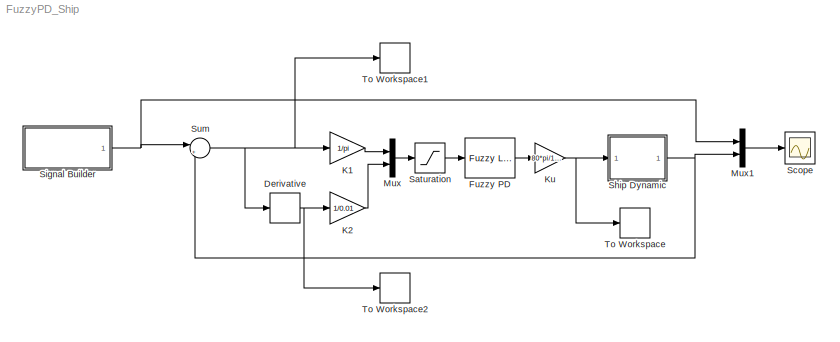
MODEL FuzzyPD_Ship
KIND model
CONFIG PreLoadFcn = FuzzyPD=readfis('FuzzyPD_Ship.fis');
CONFIG StartFcn = FuzzyPD=readfis('FuzzyPD_Ship.fis');
BLOCK [Derivative] Derivative
  SID = 1
BLOCK [Reference] Fuzzy PD  REF=fuzblock/Fuzzy Logic \nController  (lib defined in mdl_858b3b3e7478)
  Ports = [1, 1]
  SID = 2
  SourceBlock = fuzblock/Fuzzy Logic \nController
  SourceType = FIS
  fis = FuzzyPD
BLOCK [Gain] K1
  Gain = 1/pi
  SID = 3
BLOCK [Gain] K2
  Gain = 1/0.01
  SID = 4
BLOCK [Gain] Ku
  Gain = 80*pi/180
  SID = 5
BLOCK [Mux] Mux
  DisplayOption = bar
  Inputs = 2
  Ports = [2, 1]
  SID = 6
BLOCK [Mux] Mux1
  DisplayOption = bar
  Inputs = 2
  Ports = [2, 1]
  SID = 7
BLOCK [Saturate] Saturation
  InputPortMap = u0
  LowerLimit = -1
  Ports = [1, 1]
  SID = 8
  UpperLimit = 1
BLOCK [Scope] Scope
  NumInputPorts = 1
  Ports = [1]
  SID = 9
  ScopeSpecificationString = Simulink.scopes.TimeScopeBlockCfg('CurrentConfiguration', extmgr.ConfigurationSet(extmgr.Configuration('Core','General UI',true),extmgr.Configuration('Core','Source UI',true),extmgr.Configuration('Sources','WiredSimulink',true,'DataLogging',true,'DataLoggingVariableName','y','DataLoggingSaveFormat','Array','DataLoggingDecimation','1','DataLoggingDecimateData',true),extmgr.Configuration('Visuals','...<+1737ch>
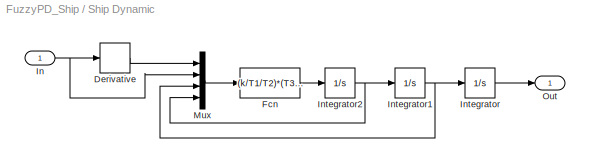
BLOCK [SubSystem] Ship Dynamic
  Ports = [1, 1]
  RequestExecContextInheritance = off
  SID = 20
  Variant = off
BLOCK [Derivative] Ship Dynamic/Derivative
  SID = 22
BLOCK [Fcn] Ship Dynamic/Fcn
  Expr = (k/T1/T2)*(T3*u(1)+u(2))-(1/T1+1/T2)*u(4)-(1/T1/T2)*(u(3)*u(3)*u(3)+u(3))
  SID = 23
BLOCK [Inport] Ship Dynamic/In
  IconDisplay = Port number
  SID = 21
BLOCK [Integrator] Ship Dynamic/Integrator
  Ports = [1, 1]
  SID = 24
BLOCK [Integrator] Ship Dynamic/Integrator1
  Ports = [1, 1]
  SID = 25
BLOCK [Integrator] Ship Dynamic/Integrator2
  Ports = [1, 1]
  SID = 26
BLOCK [Mux] Ship Dynamic/Mux
  DisplayOption = bar
  Ports = [4, 1]
  SID = 27
BLOCK [Outport] Ship Dynamic/Out
  IconDisplay = Port number
  SID = 28
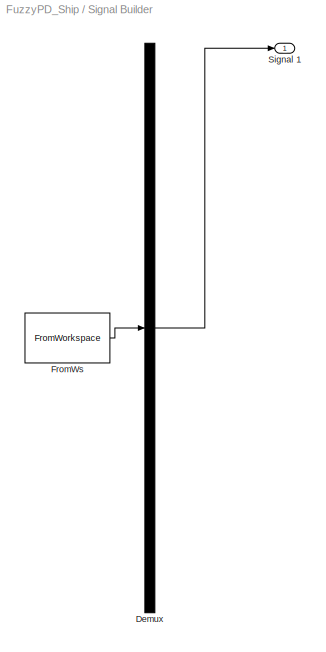
BLOCK [SubSystem] Signal Builder
  ClipboardFcn = sigbuilder_block('clipboard');
  CloseFcn = sigbuilder_block('close');
  ContinueFcn = sigbuilder_block('continue');
  CopyFcn = sigbuilder_block('copy');
  DeleteFcn = sigbuilder_block('delete');
  LoadFcn = sigbuilder_block('load',[437.25 153 550.5 359.25 ]);
  MaskHideContents = on
  ModelCloseFcn = sigbuilder_block('modelClose');
  NameChangeFcn = sigbuilder_block('namechange');
  OpenFcn = sigbuilder_block('open',[437.6 199.2 550.4 400 ]);
  PauseFcn = sigbuilder_block('pause');
  Ports = [0, 1]
  PreSaveFcn = sigbuilder_block('preSave');
  RequestExecContextInheritance = off
  SID = 32
  StartFcn = sigbuilder_block('start');
  StopFcn = sigbuilder_block('stop');
  Tag = STV Subsys
  Variant = off
BLOCK [Demux] Signal Builder/Demux
  Outputs = 1
  Ports = [1, 1]
  SID = 32:1
  Tag = STV Demux
BLOCK [FromWorkspace] Signal Builder/FromWs
  SID = 32:2
  SampleTime = 0
  SigBuilderData = DataTag0
  Tag = STV FromWs
  VariableName = tuvar
  VnvData = DataTag1
  ZeroCross = on
BLOCK [Outport] Signal Builder/Signal 1
  IconDisplay = Port number
  SID = 32:3
  Tag = STV Outport
BLOCK [Sum] Sum
  IconShape = round
  InputSameDT = off
  Inputs = |+-
  OutDataTypeStr = Inherit: Inherit via internal rule
  Ports = [2, 1]
  SID = 29
BLOCK [ToWorkspace] To Workspace
  FixptAsFi = on
  MaxDataPoints = inf
  Ports = [1]
  SID = 33
  SampleTime = -1
  Save2DSignal = 3-D array (concatenate along third dimension)
  VariableName = u
BLOCK [ToWorkspace] To Workspace1
  FixptAsFi = on
  MaxDataPoints = inf
  Ports = [1]
  SID = 34
  SampleTime = -1
  Save2DSignal = 3-D array (concatenate along third dimension)
  VariableName = e
BLOCK [ToWorkspace] To Workspace2
  FixptAsFi = on
  MaxDataPoints = inf
  Ports = [1]
  SID = 35
  SampleTime = -1
  Save2DSignal = 3-D array (concatenate along third dimension)
  VariableName = de
NET Derivative:1 -> K2:1, To Workspace2:1
LINE Fuzzy PD:1 -> Ku:1
LINE K1:1 -> Mux:1
LINE K2:1 -> Mux:2
NET Ku:1 -> Ship Dynamic:1, To Workspace:1
LINE Mux1:1 -> Scope:1
LINE Mux:1 -> Saturation:1
LINE Saturation:1 -> Fuzzy PD:1
LINE Ship Dynamic/Derivative:1 -> Ship Dynamic/Mux:1
LINE Ship Dynamic/Fcn:1 -> Ship Dynamic/Integrator2:1
NET Ship Dynamic/In:1 -> Ship Dynamic/Derivative:1, Ship Dynamic/Mux:2
NET Ship Dynamic/Integrator1:1 -> Ship Dynamic/Integrator:1, Ship Dynamic/Mux:3
NET Ship Dynamic/Integrator2:1 -> Ship Dynamic/Integrator1:1, Ship Dynamic/Mux:4
LINE Ship Dynamic/Integrator:1 -> Ship Dynamic/Out:1
LINE Ship Dynamic/Mux:1 -> Ship Dynamic/Fcn:1
NET Ship Dynamic:1 -> Mux1:2, Sum:2
LINE Signal Builder/Demux:1 -> Signal Builder/Signal 1:1
LINE Signal Builder/FromWs:1 -> Signal Builder/Demux:1
NET Signal Builder:1 -> Mux1:1, Sum:1
NET Sum:1 -> Derivative:1, K1:1, To Workspace1:1
note: NET lines group one-source signal fan-out (src -> all destinations, sorted); 1:1 wires keep LINE
